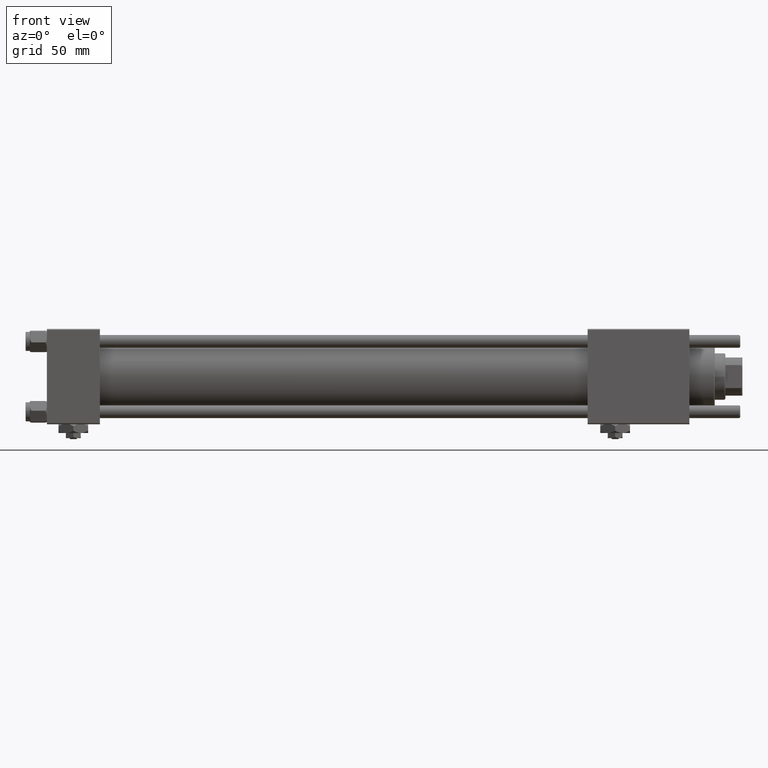
[diagram: clean part render]
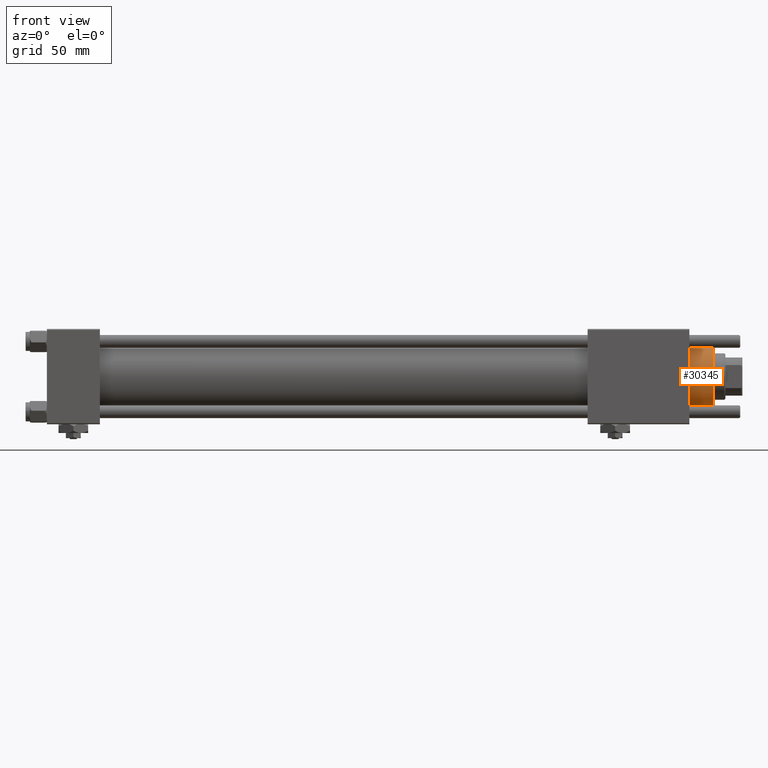
[diagram: same view with one face highlighted and labeled with its STEP entity id]
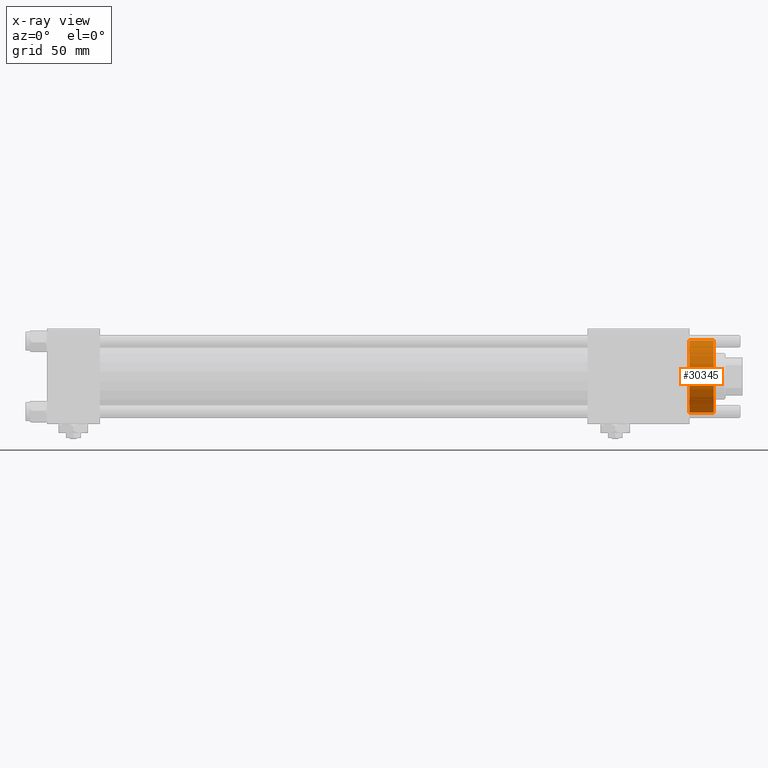
[diagram: x-ray of the same camera — body ghosted, the highlighted face saturated]
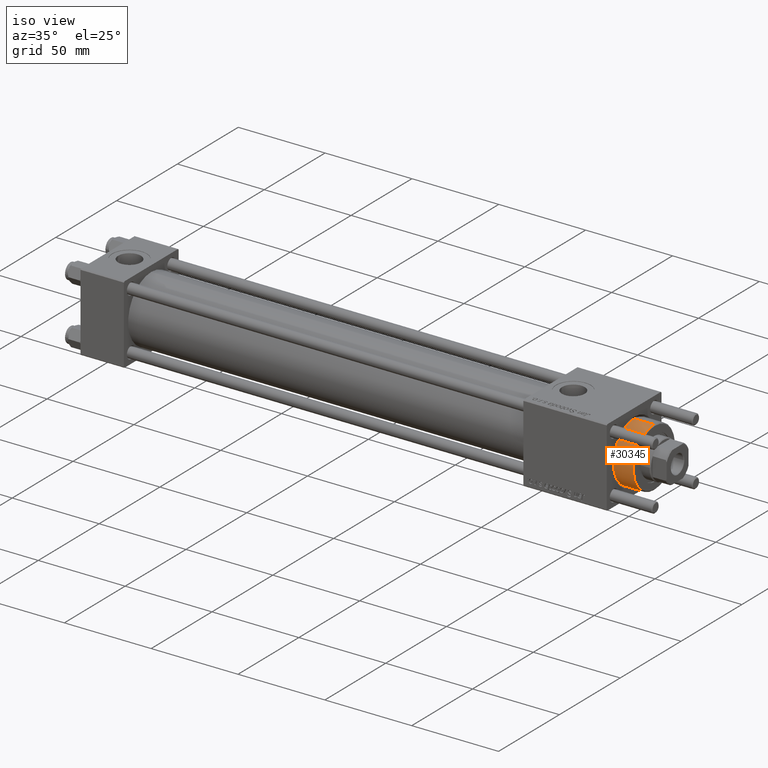
[diagram: same view with one face highlighted and labeled with its STEP entity id]
A machine part, front view. The second image highlights one B-rep face of the part: STEP entity #30345.
The next image is the same camera in x-ray: the body ghosted, the highlighted face saturated — about 0% of this face is hidden behind the body in this view.
A second angle (iso view) of the same face is appended — the face is thin or edge-on in the first view.
In plain terms, the highlighted cylindrical surface (edge-blend (fillet) strip) has radius 17 mm, axis along (-1, -0, 0).
Its self-contained STEP definition (entity closure, byte-faithful):
#2294 = CIRCLE ( 'NONE', #59462, 17.00000000000000000 ) ;
#3608 = CARTESIAN_POINT ( 'NONE',  ( -17.00000000000000000, 0.000000000000000000, 40.19999999999999574 ) ) ;
#4532 = FACE_OUTER_BOUND ( 'NONE', #15299, .T. ) ;
#4608 = ORIENTED_EDGE ( 'NONE', *, *, #38163, .F. ) ;
#6063 = EDGE_CURVE ( 'NONE', #22050, #19838, #30249, .T. ) ;
#9537 = DIRECTION ( 'NONE',  ( 0.000000000000000000, 0.000000000000000000, 1.000000000000000000 ) ) ;
#11330 = CARTESIAN_POINT ( 'NONE',  ( 17.00000000000000000, 2.081899558550500280E-15, 28.69999999999999929 ) ) ;
#11818 = VECTOR ( 'NONE', #12530, 1000.000000000000000 ) ;
#12530 = DIRECTION ( 'NONE',  ( -0.000000000000000000, -0.000000000000000000, -1.000000000000000000 ) ) ;
#15299 = EDGE_LOOP ( 'NONE', ( #4608, #40634, #58032, #30245 ) ) ;
#16466 = EDGE_CURVE ( 'NONE', #19838, #33231, #46075, .T. ) ;
#18464 = AXIS2_PLACEMENT_3D ( 'NONE', #41543, #19367, #28487 ) ;
#18743 = DIRECTION ( 'NONE',  ( -0.000000000000000000, -0.000000000000000000, -1.000000000000000000 ) ) ;
#19367 = DIRECTION ( 'NONE',  ( -0.000000000000000000, -0.000000000000000000, -1.000000000000000000 ) ) ;
#19838 = VERTEX_POINT ( 'NONE', #3608 ) ;
#22050 = VERTEX_POINT ( 'NONE', #41504 ) ;
#22233 = CARTESIAN_POINT ( 'NONE',  ( 17.00000000000000000, 2.081899558550500280E-15, 40.70000000000000284 ) ) ;
#23034 = CYLINDRICAL_SURFACE ( 'NONE', #18464, 17.00000000000000000 ) ;
#23187 = DIRECTION ( 'NONE',  ( 1.000000000000000000, 0.000000000000000000, 0.000000000000000000 ) ) ;
#26787 = LINE ( 'NONE', #22233, #11818 ) ;
#28487 = DIRECTION ( 'NONE',  ( -1.000000000000000000, 0.000000000000000000, 0.000000000000000000 ) ) ;
#29720 = VERTEX_POINT ( 'NONE', #11330 ) ;
#29758 = CARTESIAN_POINT ( 'NONE',  ( 0.000000000000000000, 0.000000000000000000, 40.19999999999999574 ) ) ;
#30048 = DIRECTION ( 'NONE',  ( 1.000000000000000000, 0.000000000000000000, 0.000000000000000000 ) ) ;
#30245 = ORIENTED_EDGE ( 'NONE', *, *, #44276, .T. ) ;
#30249 = CIRCLE ( 'NONE', #53509, 17.00000000000000000 ) ;
#30345 = ADVANCED_FACE ( 'NONE', ( #4532 ), #23034, .T. ) ;
#33231 = VERTEX_POINT ( 'NONE', #56905 ) ;
#37560 = CARTESIAN_POINT ( 'NONE',  ( -17.00000000000000000, 0.000000000000000000, 40.70000000000000284 ) ) ;
#38163 = EDGE_CURVE ( 'NONE', #22050, #29720, #26787, .T. ) ;
#40634 = ORIENTED_EDGE ( 'NONE', *, *, #6063, .T. ) ;
#41504 = CARTESIAN_POINT ( 'NONE',  ( 17.00000000000000000, 2.081899558550500280E-15, 40.19999999999999574 ) ) ;
#41543 = CARTESIAN_POINT ( 'NONE',  ( 0.000000000000000000, 0.000000000000000000, 40.70000000000000284 ) ) ;
#42297 = CARTESIAN_POINT ( 'NONE',  ( 0.000000000000000000, 0.000000000000000000, 28.69999999999999929 ) ) ;
#44276 = EDGE_CURVE ( 'NONE', #33231, #29720, #2294, .T. ) ;
#46075 = LINE ( 'NONE', #37560, #54852 ) ;
#53509 = AXIS2_PLACEMENT_3D ( 'NONE', #29758, #57945, #30048 ) ;
#54852 = VECTOR ( 'NONE', #18743, 1000.000000000000000 ) ;
#56905 = CARTESIAN_POINT ( 'NONE',  ( -17.00000000000000000, 0.000000000000000000, 28.69999999999999929 ) ) ;
#57945 = DIRECTION ( 'NONE',  ( 0.000000000000000000, 0.000000000000000000, -1.000000000000000000 ) ) ;
#58032 = ORIENTED_EDGE ( 'NONE', *, *, #16466, .T. ) ;
#59462 = AXIS2_PLACEMENT_3D ( 'NONE', #42297, #9537, #23187 ) ;